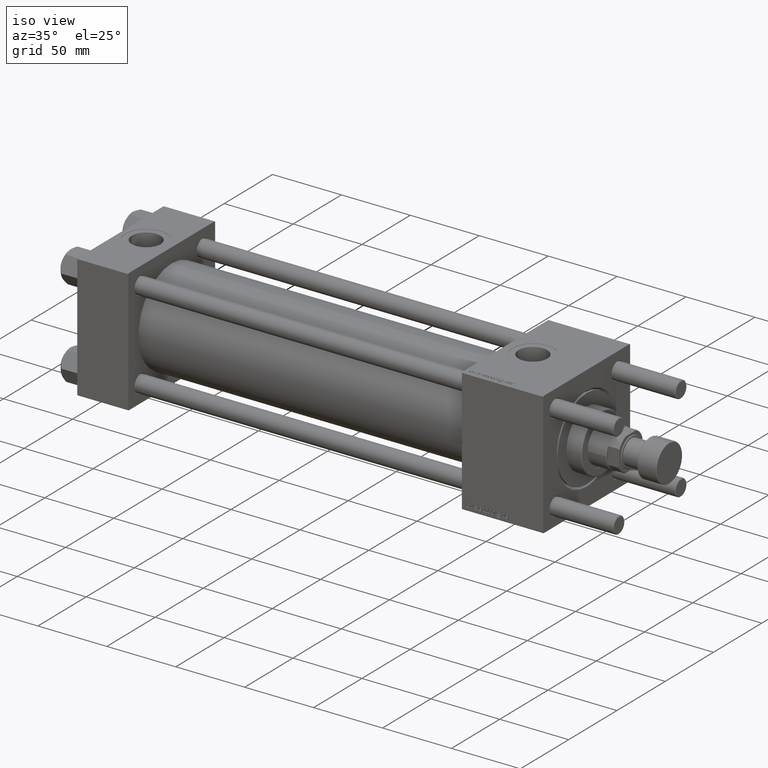
[diagram: clean part render]
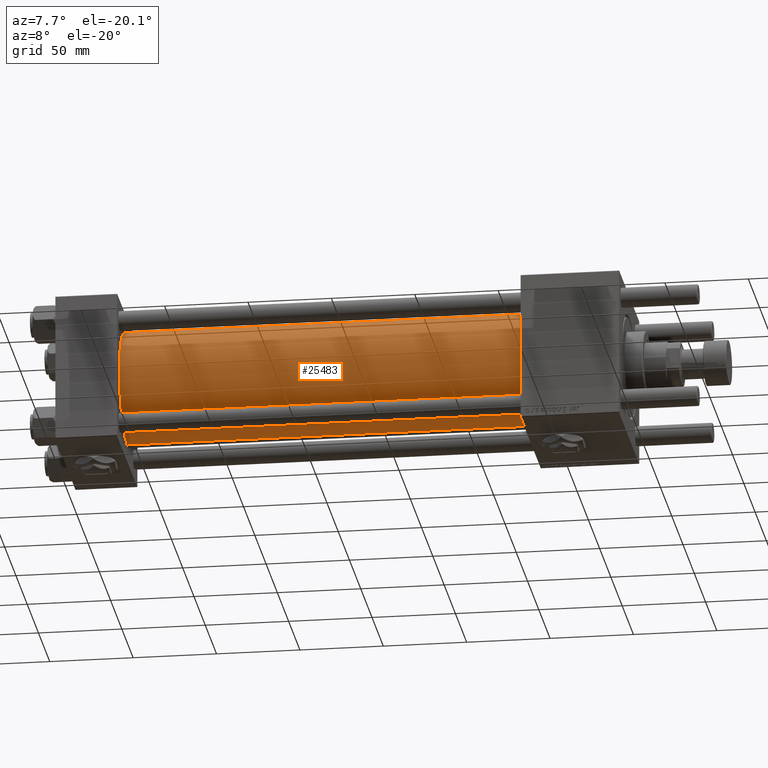
[diagram: tour spotlight — one face highlighted and labeled with its STEP entity id]
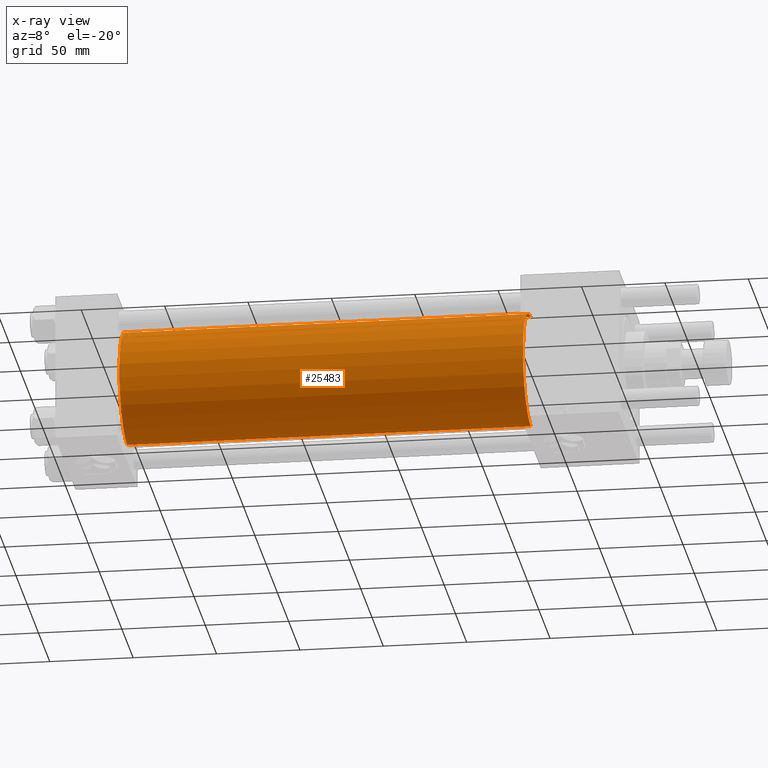
[diagram: x-ray of the same camera — body ghosted, this tour face saturated]
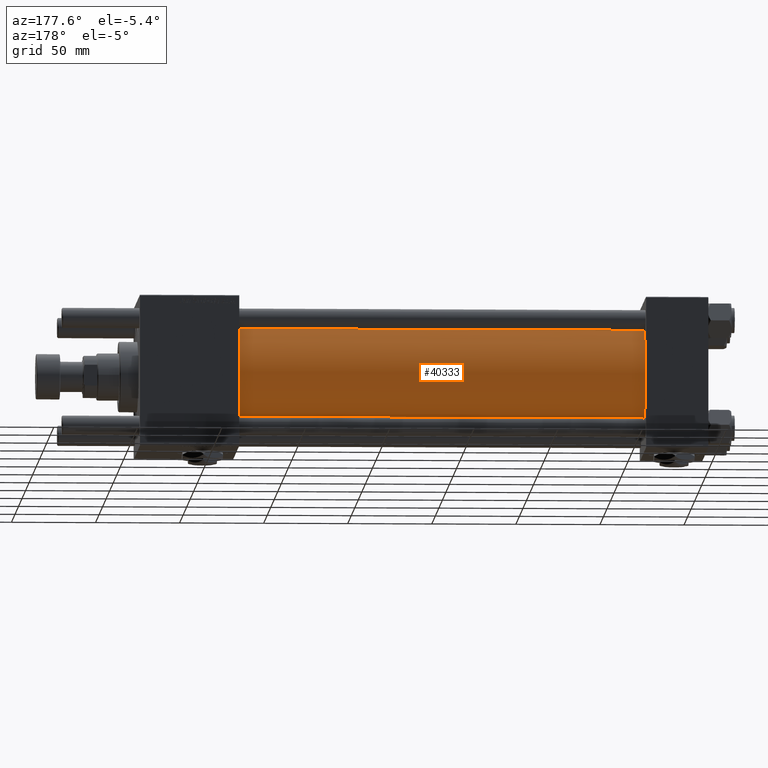
[diagram: tour spotlight — one face highlighted and labeled with its STEP entity id]
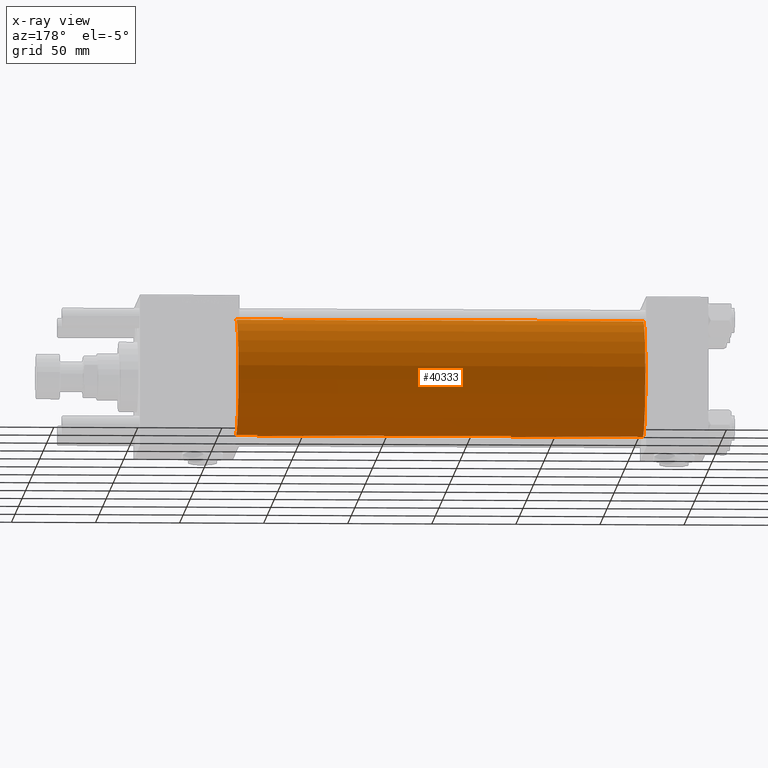
[diagram: x-ray of the same camera — body ghosted, this tour face saturated]
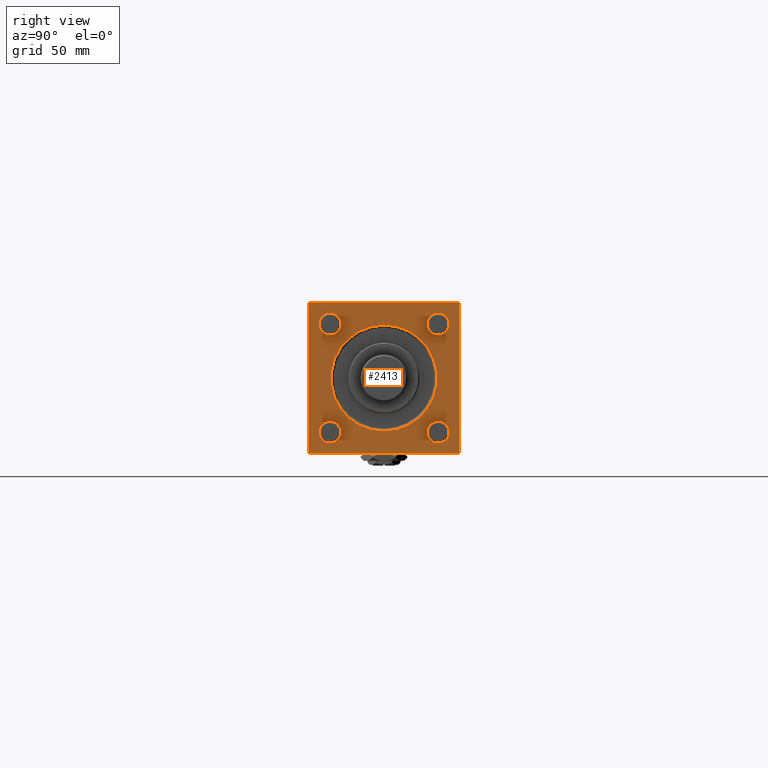
[diagram: tour spotlight — one face highlighted and labeled with its STEP entity id]
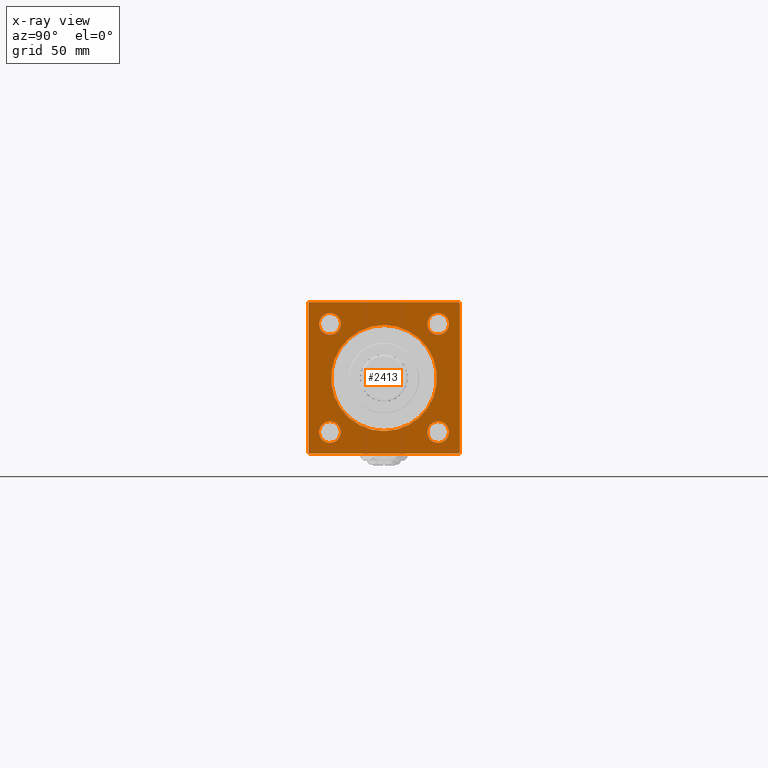
[diagram: x-ray of the same camera — body ghosted, this tour face saturated]
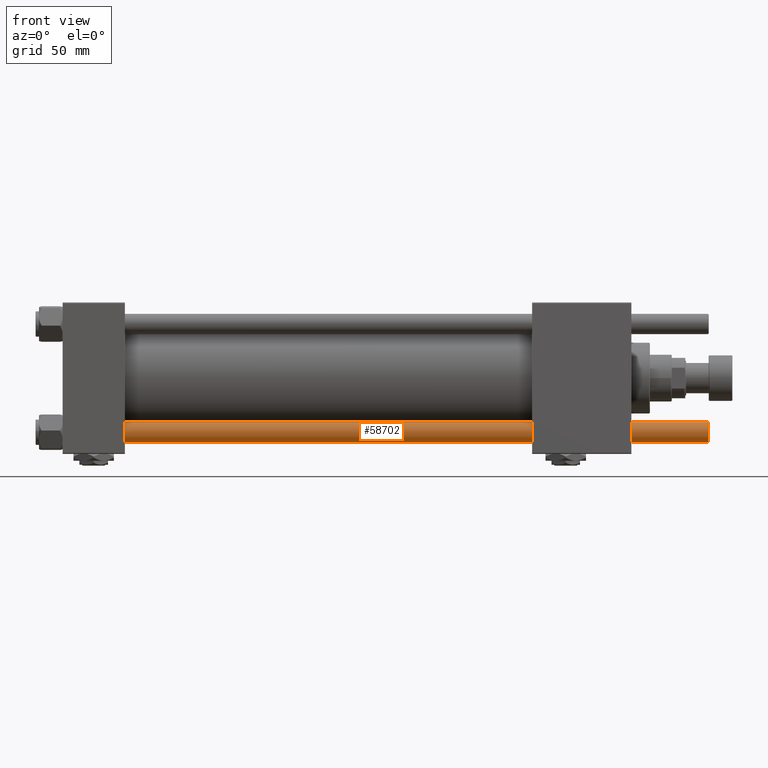
[diagram: tour spotlight — one face highlighted and labeled with its STEP entity id]
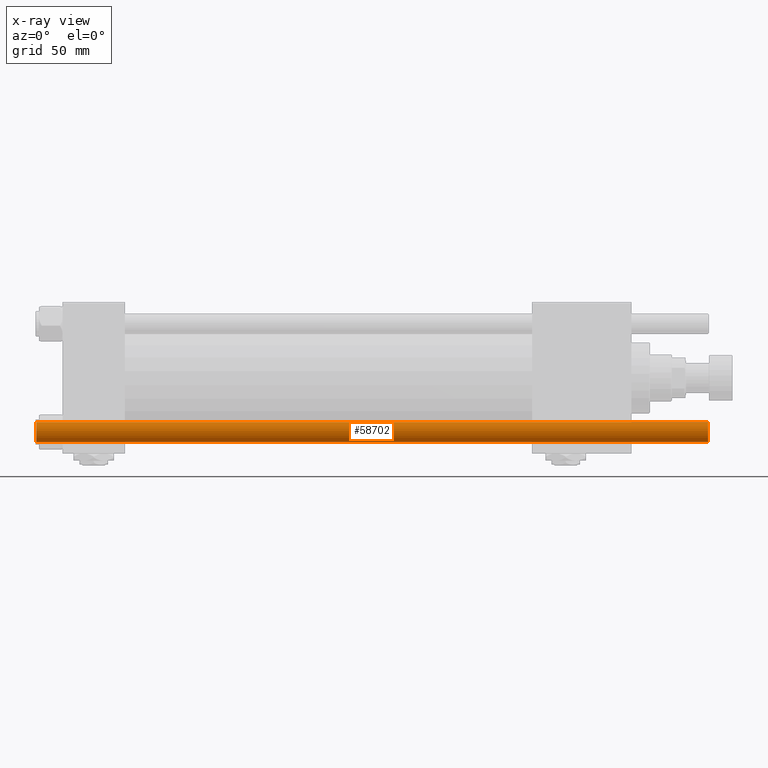
[diagram: x-ray of the same camera — body ghosted, this tour face saturated]
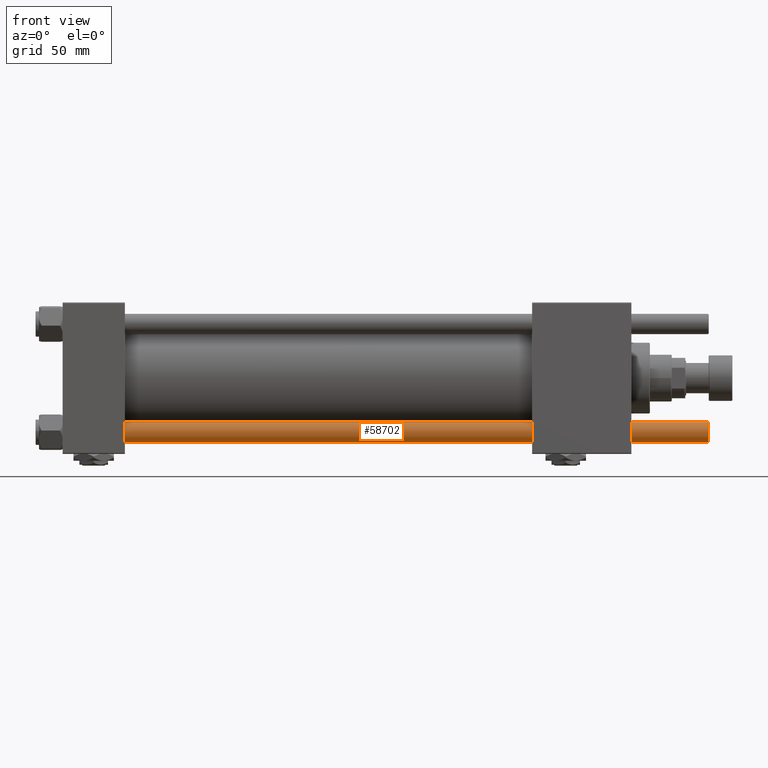
[diagram: tour spotlight — one face highlighted and labeled with its STEP entity id]
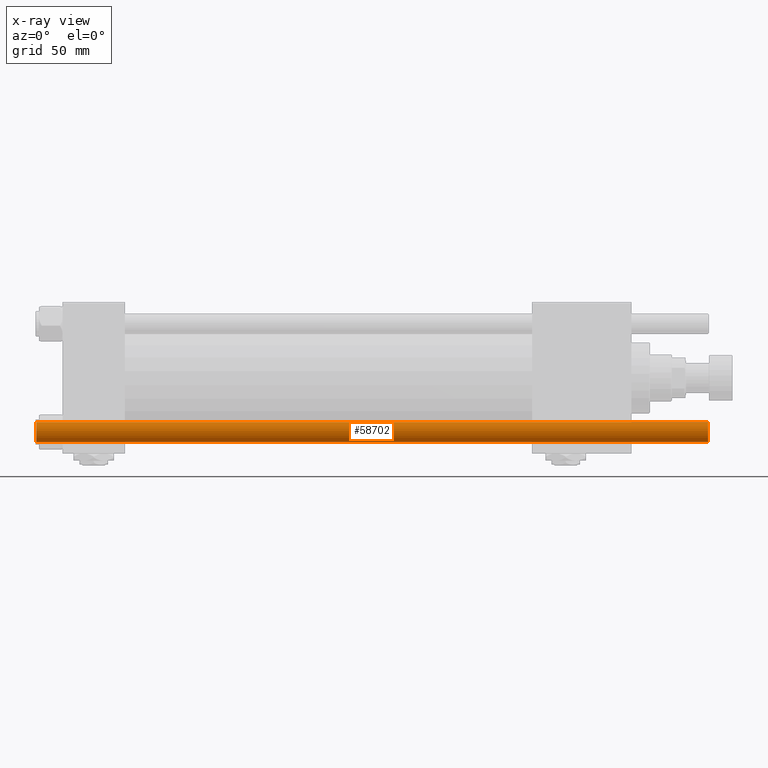
[diagram: x-ray of the same camera — body ghosted, this tour face saturated]
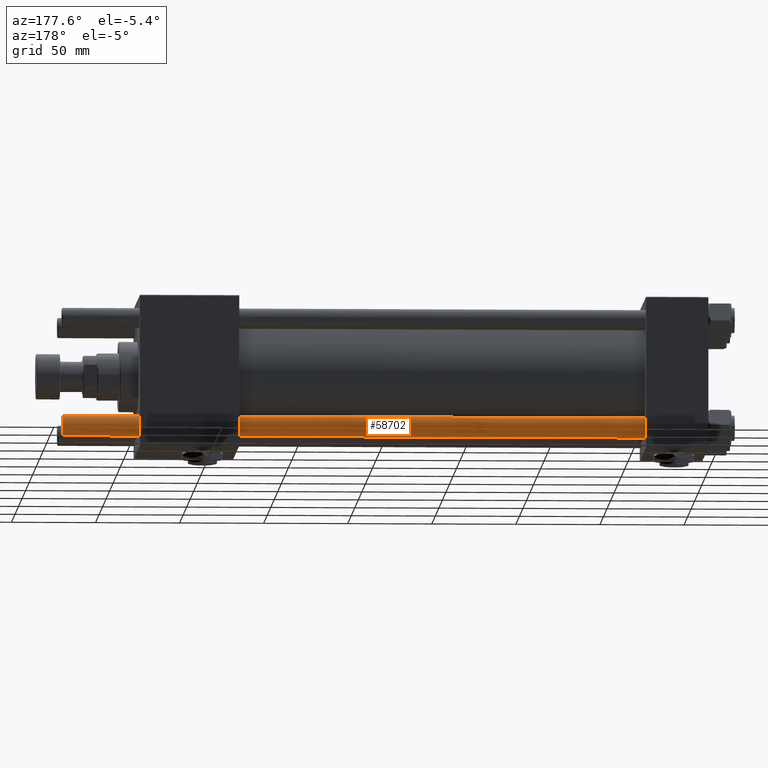
[diagram: tour spotlight — one face highlighted and labeled with its STEP entity id]
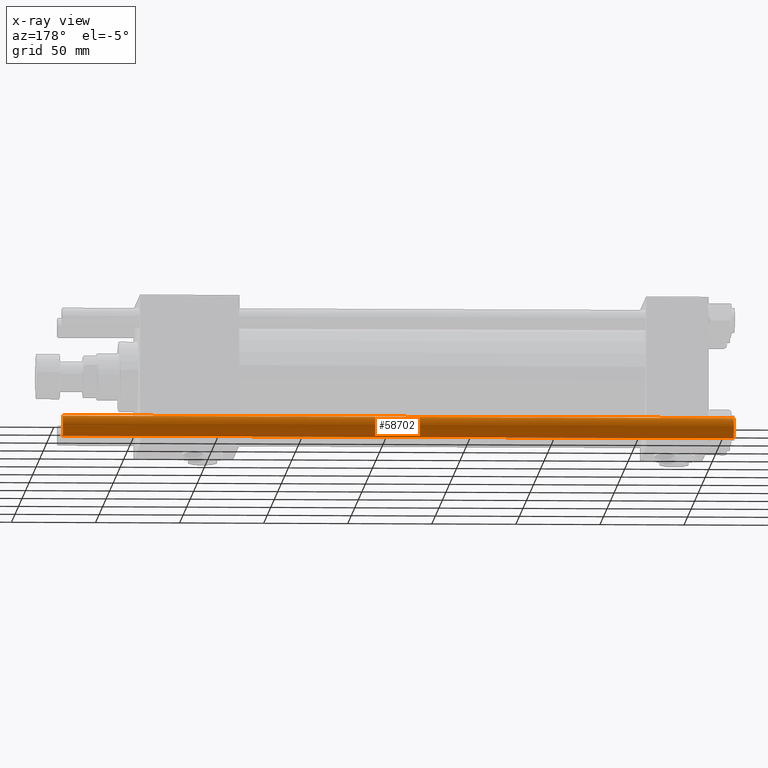
[diagram: x-ray of the same camera — body ghosted, this tour face saturated]
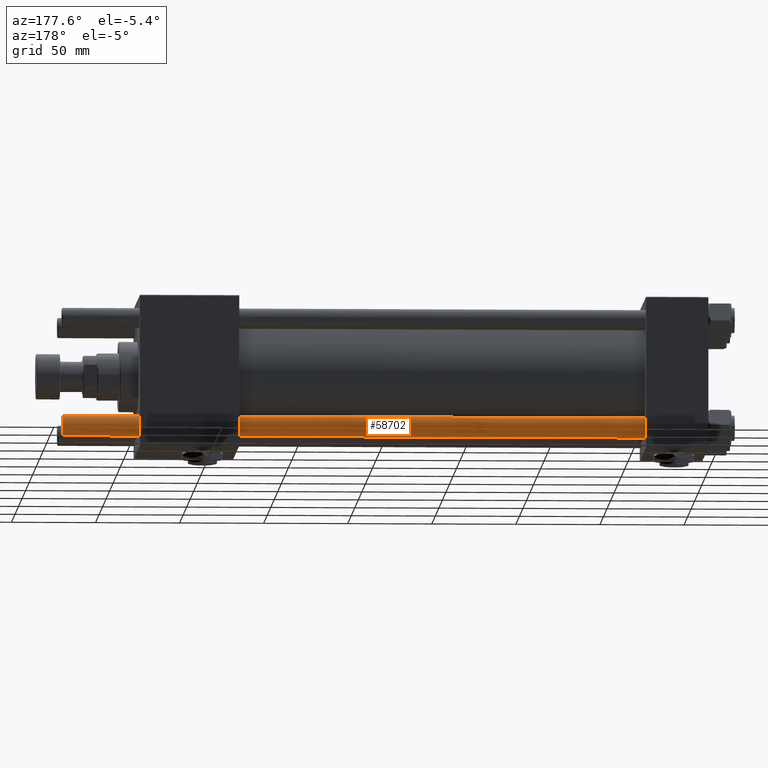
[diagram: tour spotlight — one face highlighted and labeled with its STEP entity id]
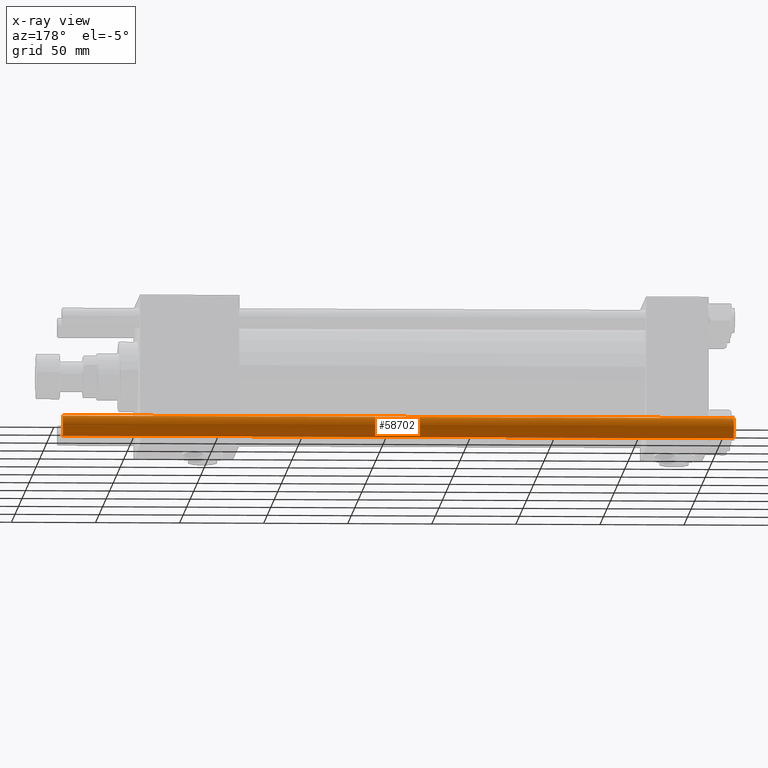
[diagram: x-ray of the same camera — body ghosted, this tour face saturated]
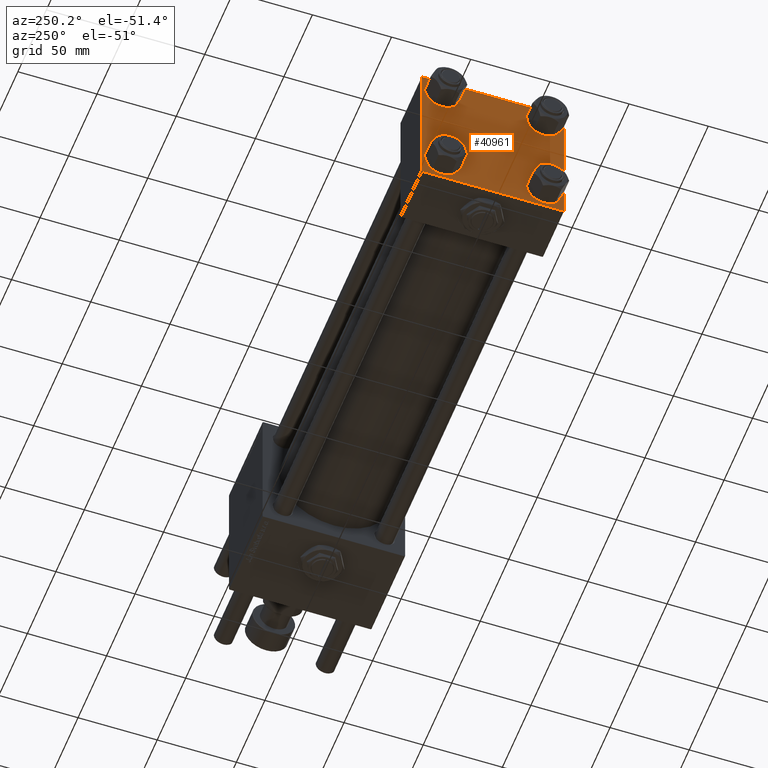
[diagram: tour spotlight — one face highlighted and labeled with its STEP entity id]
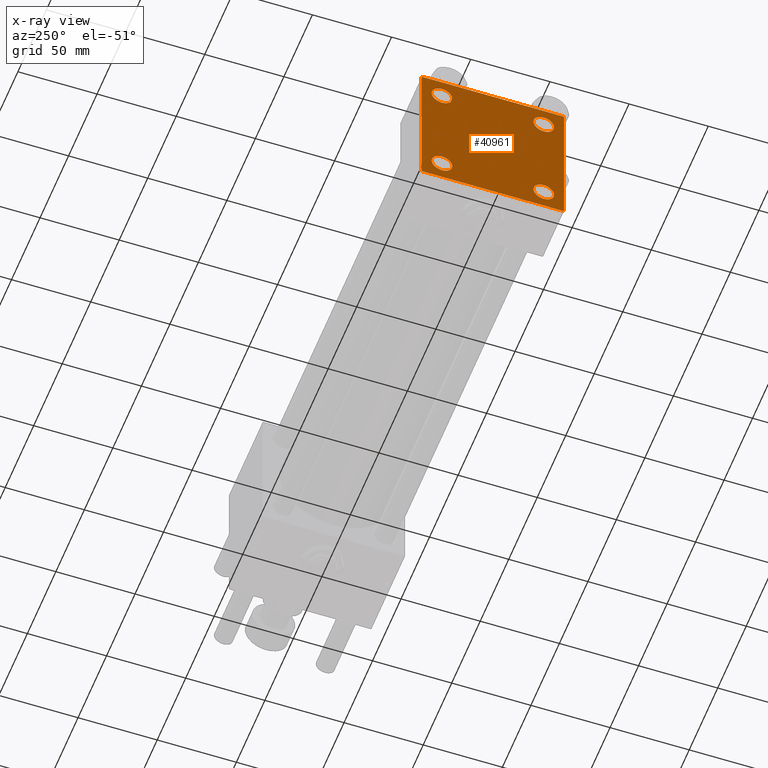
[diagram: x-ray of the same camera — body ghosted, this tour face saturated]
A machine part: a face-by-face anatomy tour. The part has 1271 B-rep faces; the first image is the clean iso view, then the 8 largest visible faces are spotlighted one at a time (largest first), each with its STEP entity span.

Face 1 — auxiliary view, entity #25483. An x-ray twin of the same camera follows (body ghosted, this face saturated) — the face is partly hidden behind the body. In plain terms, the highlighted cylindrical surface (partial cylindrical patch) has radius 34.5 mm, axis along (-1, -0, -0).
Definition (entity closure, byte-faithful):
#403 = AXIS2_PLACEMENT_3D ( 'NONE', #58868, #423, #54067 ) ;
#423 = DIRECTION ( 'NONE',  ( 1.000000000000000000, 0.000000000000000000, 0.000000000000000000 ) ) ;
#3484 = EDGE_CURVE ( 'NONE', #48562, #52103, #35583, .T. ) ;
#4712 = DIRECTION ( 'NONE',  ( -1.000000000000000000, -0.000000000000000000, -0.000000000000000000 ) ) ;
#4999 = DIRECTION ( 'NONE',  ( 1.000000000000000000, -0.000000000000000000, 0.000000000000000000 ) ) ;
#6375 = CARTESIAN_POINT ( 'NONE',  ( 278.9999999999999432, 1.622946243093158675E-15, -34.50000000000000000 ) ) ;
#6524 = CARTESIAN_POINT ( 'NONE',  ( 37.00000000000000711, 1.622946243093158675E-15, -34.50000000000000000 ) ) ;
#7994 = CARTESIAN_POINT ( 'NONE',  ( 37.00000000000000711, -2.602085213965210642E-15, 34.50000000000000000 ) ) ;
#8861 = ORIENTED_EDGE ( 'NONE', *, *, #51564, .F. ) ;
#11026 = AXIS2_PLACEMENT_3D ( 'NONE', #51600, #24304, #42593 ) ;
#11244 = DIRECTION ( 'NONE',  ( -1.000000000000000000, -0.000000000000000000, -0.000000000000000000 ) ) ;
#12458 = ORIENTED_EDGE ( 'NONE', *, *, #53970, .T. ) ;
#13209 = VECTOR ( 'NONE', #11244, 1000.000000000000000 ) ;
#14349 = ORIENTED_EDGE ( 'NONE', *, *, #3484, .T. ) ;
#15718 = CARTESIAN_POINT ( 'NONE',  ( 278.9999999999999432, 1.622946243093158675E-15, -34.50000000000000000 ) ) ;
#17875 = CARTESIAN_POINT ( 'NONE',  ( 278.9999999999999432, -2.602085213965210642E-15, 34.50000000000000000 ) ) ;
#22936 = VERTEX_POINT ( 'NONE', #6375 ) ;
#23860 = EDGE_CURVE ( 'NONE', #48562, #22936, #29134, .T. ) ;
#24037 = VECTOR ( 'NONE', #4712, 1000.000000000000000 ) ;
#24304 = DIRECTION ( 'NONE',  ( -1.000000000000000000, -0.000000000000000000, -0.000000000000000000 ) ) ;
#25322 = CARTESIAN_POINT ( 'NONE',  ( 278.9999999999999432, -2.602085213965210642E-15, 34.50000000000000000 ) ) ;
#25483 = ADVANCED_FACE ( 'NONE', ( #57001 ), #46477, .T. ) ;
#29134 = CIRCLE ( 'NONE', #403, 34.50000000000000000 ) ;
#29576 = ORIENTED_EDGE ( 'NONE', *, *, #23860, .F. ) ;
#35583 = LINE ( 'NONE', #17875, #24037 ) ;
#36754 = CARTESIAN_POINT ( 'NONE',  ( 37.00000000000000711, -2.602085213965210642E-15, 0.000000000000000000 ) ) ;
#42593 = DIRECTION ( 'NONE',  ( 0.000000000000000000, 0.000000000000000000, 1.000000000000000000 ) ) ;
#46477 = CYLINDRICAL_SURFACE ( 'NONE', #11026, 34.50000000000000000 ) ;
#48562 = VERTEX_POINT ( 'NONE', #25322 ) ;
#49664 = CIRCLE ( 'NONE', #53481, 34.50000000000000000 ) ;
#51214 = VERTEX_POINT ( 'NONE', #6524 ) ;
#51564 = EDGE_CURVE ( 'NONE', #22936, #51214, #53463, .T. ) ;
#51600 = CARTESIAN_POINT ( 'NONE',  ( 278.9999999999999432, -2.602085213965210642E-15, 0.000000000000000000 ) ) ;
#52103 = VERTEX_POINT ( 'NONE', #7994 ) ;
#53463 = LINE ( 'NONE', #15718, #13209 ) ;
#53481 = AXIS2_PLACEMENT_3D ( 'NONE', #36754, #4999, #54162 ) ;
#53970 = EDGE_CURVE ( 'NONE', #52103, #51214, #49664, .T. ) ;
#54067 = DIRECTION ( 'NONE',  ( 0.000000000000000000, 0.000000000000000000, -1.000000000000000000 ) ) ;
#54162 = DIRECTION ( 'NONE',  ( 0.000000000000000000, 0.000000000000000000, 1.000000000000000000 ) ) ;
#56918 = EDGE_LOOP ( 'NONE', ( #8861, #29576, #14349, #12458 ) ) ;
#57001 = FACE_OUTER_BOUND ( 'NONE', #56918, .T. ) ;
#58868 = CARTESIAN_POINT ( 'NONE',  ( 278.9999999999999432, -2.602085213965210642E-15, 0.000000000000000000 ) ) ;

Face 2 — auxiliary view, entity #40333. An x-ray twin of the same camera follows (body ghosted, this face saturated) — the face is partly hidden behind the body. In plain terms, the highlighted cylindrical surface (partial cylindrical patch) has radius 34.5 mm, axis along (-1, -0, -0).
Definition (entity closure, byte-faithful):
#3484 = EDGE_CURVE ( 'NONE', #48562, #52103, #35583, .T. ) ;
#4712 = DIRECTION ( 'NONE',  ( -1.000000000000000000, -0.000000000000000000, -0.000000000000000000 ) ) ;
#6375 = CARTESIAN_POINT ( 'NONE',  ( 278.9999999999999432, 1.622946243093158675E-15, -34.50000000000000000 ) ) ;
#6524 = CARTESIAN_POINT ( 'NONE',  ( 37.00000000000000711, 1.622946243093158675E-15, -34.50000000000000000 ) ) ;
#7089 = FACE_OUTER_BOUND ( 'NONE', #13055, .T. ) ;
#7994 = CARTESIAN_POINT ( 'NONE',  ( 37.00000000000000711, -2.602085213965210642E-15, 34.50000000000000000 ) ) ;
#8608 = ORIENTED_EDGE ( 'NONE', *, *, #51564, .T. ) ;
#9100 = EDGE_CURVE ( 'NONE', #22936, #48562, #53893, .T. ) ;
#10535 = CARTESIAN_POINT ( 'NONE',  ( 278.9999999999999432, -2.602085213965210642E-15, 0.000000000000000000 ) ) ;
#11244 = DIRECTION ( 'NONE',  ( -1.000000000000000000, -0.000000000000000000, -0.000000000000000000 ) ) ;
#13055 = EDGE_LOOP ( 'NONE', ( #39593, #8608, #31955, #59205 ) ) ;
#13209 = VECTOR ( 'NONE', #11244, 1000.000000000000000 ) ;
#15461 = DIRECTION ( 'NONE',  ( -1.000000000000000000, -0.000000000000000000, -0.000000000000000000 ) ) ;
#15718 = CARTESIAN_POINT ( 'NONE',  ( 278.9999999999999432, 1.622946243093158675E-15, -34.50000000000000000 ) ) ;
#16581 = AXIS2_PLACEMENT_3D ( 'NONE', #10535, #23382, #18886 ) ;
#17482 = DIRECTION ( 'NONE',  ( 1.000000000000000000, -0.000000000000000000, 0.000000000000000000 ) ) ;
#17875 = CARTESIAN_POINT ( 'NONE',  ( 278.9999999999999432, -2.602085213965210642E-15, 34.50000000000000000 ) ) ;
#18886 = DIRECTION ( 'NONE',  ( 0.000000000000000000, 0.000000000000000000, -1.000000000000000000 ) ) ;
#22936 = VERTEX_POINT ( 'NONE', #6375 ) ;
#23382 = DIRECTION ( 'NONE',  ( 1.000000000000000000, 0.000000000000000000, 0.000000000000000000 ) ) ;
#23840 = EDGE_CURVE ( 'NONE', #51214, #52103, #54965, .T. ) ;
#24037 = VECTOR ( 'NONE', #4712, 1000.000000000000000 ) ;
#24438 = CYLINDRICAL_SURFACE ( 'NONE', #49606, 34.50000000000000000 ) ;
#25322 = CARTESIAN_POINT ( 'NONE',  ( 278.9999999999999432, -2.602085213965210642E-15, 34.50000000000000000 ) ) ;
#29538 = DIRECTION ( 'NONE',  ( 0.000000000000000000, 0.000000000000000000, 1.000000000000000000 ) ) ;
#30132 = CARTESIAN_POINT ( 'NONE',  ( 278.9999999999999432, -2.602085213965210642E-15, 0.000000000000000000 ) ) ;
#31955 = ORIENTED_EDGE ( 'NONE', *, *, #23840, .T. ) ;
#35583 = LINE ( 'NONE', #17875, #24037 ) ;
#39593 = ORIENTED_EDGE ( 'NONE', *, *, #9100, .F. ) ;
#40333 = ADVANCED_FACE ( 'NONE', ( #7089 ), #24438, .T. ) ;
#41145 = DIRECTION ( 'NONE',  ( 0.000000000000000000, 0.000000000000000000, 1.000000000000000000 ) ) ;
#48562 = VERTEX_POINT ( 'NONE', #25322 ) ;
#49606 = AXIS2_PLACEMENT_3D ( 'NONE', #30132, #15461, #29538 ) ;
#50157 = CARTESIAN_POINT ( 'NONE',  ( 37.00000000000000711, -2.602085213965210642E-15, 0.000000000000000000 ) ) ;
#51113 = AXIS2_PLACEMENT_3D ( 'NONE', #50157, #17482, #41145 ) ;
#51214 = VERTEX_POINT ( 'NONE', #6524 ) ;
#51564 = EDGE_CURVE ( 'NONE', #22936, #51214, #53463, .T. ) ;
#52103 = VERTEX_POINT ( 'NONE', #7994 ) ;
#53463 = LINE ( 'NONE', #15718, #13209 ) ;
#53893 = CIRCLE ( 'NONE', #16581, 34.50000000000000000 ) ;
#54965 = CIRCLE ( 'NONE', #51113, 34.50000000000000000 ) ;
#59205 = ORIENTED_EDGE ( 'NONE', *, *, #3484, .F. ) ;

Face 3 — right view, entity #2413. An x-ray twin of the same camera follows (body ghosted, this face saturated) — the face is partly hidden behind the body. In plain terms, the highlighted planar face has unit normal (-1, 0, 0).
Definition (entity closure, byte-faithful):
#1278 = FACE_BOUND ( 'NONE', #51447, .T. ) ;
#1734 = CIRCLE ( 'NONE', #7471, 6.500000000000005329 ) ;
#1839 = DIRECTION ( 'NONE',  ( -0.000000000000000000, -0.7071067811865081598, -0.7071067811865868746 ) ) ;
#1959 = EDGE_CURVE ( 'NONE', #50917, #53584, #8731, .T. ) ;
#1973 = VECTOR ( 'NONE', #21891, 1000.000000000000000 ) ;
#2124 = DIRECTION ( 'NONE',  ( -1.000000000000000000, -0.000000000000000000, -0.000000000000000000 ) ) ;
#2413 = ADVANCED_FACE ( 'NONE', ( #56711, #19519, #1278, #2471, #52512, #47104 ), #37806, .F. ) ;
#2471 = FACE_BOUND ( 'NONE', #4355, .T. ) ;
#2521 = CARTESIAN_POINT ( 'NONE',  ( 337.9999999999999432, -44.99999999999999289, -44.49999999999997158 ) ) ;
#2866 = CARTESIAN_POINT ( 'NONE',  ( 337.9999999999999432, 45.00000000000001421, 45.00000000000000000 ) ) ;
#3177 = CARTESIAN_POINT ( 'NONE',  ( 337.9999999999999432, 45.00000000000001421, -44.49999999999997158 ) ) ;
#3557 = CARTESIAN_POINT ( 'NONE',  ( 337.9999999999999432, -32.14999999999997726, -32.15000000000001279 ) ) ;
#3713 = CIRCLE ( 'NONE', #26659, 6.500000000000005329 ) ;
#3767 = CARTESIAN_POINT ( 'NONE',  ( 337.9999999999999432, -32.14999999999997726, 25.65000000000000568 ) ) ;
#3926 = AXIS2_PLACEMENT_3D ( 'NONE', #56411, #15343, #25224 ) ;
#4033 = DIRECTION ( 'NONE',  ( 0.000000000000000000, 0.000000000000000000, -1.000000000000000000 ) ) ;
#4355 = EDGE_LOOP ( 'NONE', ( #33767, #19645 ) ) ;
#4671 = DIRECTION ( 'NONE',  ( -1.000000000000000000, -0.000000000000000000, -0.000000000000000000 ) ) ;
#5104 = ORIENTED_EDGE ( 'NONE', *, *, #29786, .T. ) ;
#5627 = EDGE_CURVE ( 'NONE', #25425, #52429, #12606, .T. ) ;
#6096 = EDGE_CURVE ( 'NONE', #23243, #18637, #9403, .T. ) ;
#6953 = DIRECTION ( 'NONE',  ( -1.000000000000000000, -0.000000000000000000, -0.000000000000000000 ) ) ;
#7471 = AXIS2_PLACEMENT_3D ( 'NONE', #37586, #19296, #56793 ) ;
#8123 = DIRECTION ( 'NONE',  ( -1.000000000000000000, -0.000000000000000000, -0.000000000000000000 ) ) ;
#8187 = AXIS2_PLACEMENT_3D ( 'NONE', #49162, #8123, #26366 ) ;
#8265 = ORIENTED_EDGE ( 'NONE', *, *, #41005, .T. ) ;
#8731 = LINE ( 'NONE', #44669, #1973 ) ;
#9403 = LINE ( 'NONE', #10285, #18358 ) ;
#9542 = CIRCLE ( 'NONE', #55476, 6.500000000000005329 ) ;
#10285 = CARTESIAN_POINT ( 'NONE',  ( 337.9999999999999432, 45.00000000000001421, 45.00000000000000000 ) ) ;
#10292 = DIRECTION ( 'NONE',  ( 0.000000000000000000, 7.709882115452478166E-17, -1.000000000000000000 ) ) ;
#10625 = ORIENTED_EDGE ( 'NONE', *, *, #30194, .T. ) ;
#11621 = EDGE_CURVE ( 'NONE', #22733, #40766, #51342, .T. ) ;
#12092 = CARTESIAN_POINT ( 'NONE',  ( 337.9999999999999432, 0.000000000000000000, 0.000000000000000000 ) ) ;
#12409 = ORIENTED_EDGE ( 'NONE', *, *, #40101, .T. ) ;
#12606 = CIRCLE ( 'NONE', #46072, 6.500000000000005329 ) ;
#12633 = CARTESIAN_POINT ( 'NONE',  ( 337.9999999999999432, 32.14999999999999147, -32.15000000000000568 ) ) ;
#13044 = CARTESIAN_POINT ( 'NONE',  ( 337.9999999999999432, -32.14999999999997726, -38.65000000000001990 ) ) ;
#13863 = EDGE_CURVE ( 'NONE', #53650, #33226, #39692, .T. ) ;
#14128 = CARTESIAN_POINT ( 'NONE',  ( 337.9999999999999432, 32.14999999999999147, -25.64999999999999858 ) ) ;
#14284 = CARTESIAN_POINT ( 'NONE',  ( 337.9999999999999432, -45.00000000000000000, 44.49999999999998579 ) ) ;
#14994 = EDGE_CURVE ( 'NONE', #24717, #41172, #23215, .T. ) ;
#15343 = DIRECTION ( 'NONE',  ( -1.000000000000000000, 0.000000000000000000, -0.000000000000000000 ) ) ;
#15796 = CARTESIAN_POINT ( 'NONE',  ( 337.9999999999999432, 32.14999999999999147, -38.65000000000001279 ) ) ;
#15943 = VERTEX_POINT ( 'NONE', #13044 ) ;
#16244 = CIRCLE ( 'NONE', #32468, 6.500000000000005329 ) ;
#17720 = LINE ( 'NONE', #36008, #54378 ) ;
#18358 = VECTOR ( 'NONE', #28538, 1000.000000000000000 ) ;
#18637 = VERTEX_POINT ( 'NONE', #20604 ) ;
#19180 = LINE ( 'NONE', #47370, #42935 ) ;
#19190 = VERTEX_POINT ( 'NONE', #34199 ) ;
#19296 = DIRECTION ( 'NONE',  ( -1.000000000000000000, -0.000000000000000000, -0.000000000000000000 ) ) ;
#19519 = FACE_BOUND ( 'NONE', #24753, .T. ) ;
#19645 = ORIENTED_EDGE ( 'NONE', *, *, #51515, .T. ) ;
#20111 = DIRECTION ( 'NONE',  ( 0.000000000000000000, 0.000000000000000000, 1.000000000000000000 ) ) ;
#20604 = CARTESIAN_POINT ( 'NONE',  ( 337.9999999999999432, -44.50000000000002842, 44.99999999999998579 ) ) ;
#20615 = VERTEX_POINT ( 'NONE', #3767 ) ;
#21498 = CARTESIAN_POINT ( 'NONE',  ( 337.9999999999999432, -32.14999999999997726, 32.15000000000001279 ) ) ;
#21810 = DIRECTION ( 'NONE',  ( -1.000000000000000000, -0.000000000000000000, -0.000000000000000000 ) ) ;
#21891 = DIRECTION ( 'NONE',  ( 0.000000000000000000, -1.000000000000000000, 0.000000000000000000 ) ) ;
#22193 = DIRECTION ( 'NONE',  ( -1.000000000000000000, -0.000000000000000000, -0.000000000000000000 ) ) ;
#22332 = EDGE_CURVE ( 'NONE', #37726, #39425, #43559, .T. ) ;
#22354 = ORIENTED_EDGE ( 'NONE', *, *, #1959, .F. ) ;
#22510 = CARTESIAN_POINT ( 'NONE',  ( 337.9999999999999432, 3.857637417314158745E-15, 31.49999999999997158 ) ) ;
#22733 = VERTEX_POINT ( 'NONE', #14284 ) ;
#23215 = CIRCLE ( 'NONE', #40413, 31.49999999999997158 ) ;
#23243 = VERTEX_POINT ( 'NONE', #53903 ) ;
#24267 = CARTESIAN_POINT ( 'NONE',  ( 337.9999999999999432, 0.000000000000000000, 0.000000000000000000 ) ) ;
#24717 = VERTEX_POINT ( 'NONE', #22510 ) ;
#24753 = EDGE_LOOP ( 'NONE', ( #46665, #31997 ) ) ;
#24813 = ORIENTED_EDGE ( 'NONE', *, *, #39085, .T. ) ;
#25224 = DIRECTION ( 'NONE',  ( -0.000000000000000000, 0.000000000000000000, 1.000000000000000000 ) ) ;
#25425 = VERTEX_POINT ( 'NONE', #36899 ) ;
#26366 = DIRECTION ( 'NONE',  ( 0.000000000000000000, 0.000000000000000000, 1.000000000000000000 ) ) ;
#26427 = DIRECTION ( 'NONE',  ( 0.000000000000000000, 0.000000000000000000, 1.000000000000000000 ) ) ;
#26659 = AXIS2_PLACEMENT_3D ( 'NONE', #29402, #6953, #20111 ) ;
#27556 = CIRCLE ( 'NONE', #35227, 6.500000000000005329 ) ;
#27739 = ORIENTED_EDGE ( 'NONE', *, *, #47148, .T. ) ;
#27931 = EDGE_CURVE ( 'NONE', #20615, #19190, #31116, .T. ) ;
#28509 = CIRCLE ( 'NONE', #34313, 31.49999999999997158 ) ;
#28538 = DIRECTION ( 'NONE',  ( 0.000000000000000000, -1.000000000000000000, -1.541976423090495140E-16 ) ) ;
#29256 = AXIS2_PLACEMENT_3D ( 'NONE', #21498, #34717, #57214 ) ;
#29402 = CARTESIAN_POINT ( 'NONE',  ( 337.9999999999999432, 32.14999999999999147, 32.15000000000000568 ) ) ;
#29786 = EDGE_CURVE ( 'NONE', #50917, #33226, #53645, .T. ) ;
#29986 = DIRECTION ( 'NONE',  ( -0.000000000000000000, 0.7071067811865474617, 0.7071067811865474617 ) ) ;
#30194 = EDGE_CURVE ( 'NONE', #40766, #53584, #51434, .T. ) ;
#30355 = DIRECTION ( 'NONE',  ( -1.000000000000000000, -0.000000000000000000, -0.000000000000000000 ) ) ;
#31116 = CIRCLE ( 'NONE', #29256, 6.500000000000005329 ) ;
#31992 = EDGE_LOOP ( 'NONE', ( #24813, #47117 ) ) ;
#31997 = ORIENTED_EDGE ( 'NONE', *, *, #22332, .T. ) ;
#32053 = CARTESIAN_POINT ( 'NONE',  ( 337.9999999999999432, 44.50000000000001421, -45.00000000000000000 ) ) ;
#32211 = CARTESIAN_POINT ( 'NONE',  ( 337.9999999999999432, -32.14999999999997726, -32.15000000000001279 ) ) ;
#32468 = AXIS2_PLACEMENT_3D ( 'NONE', #12633, #22193, #40479 ) ;
#33226 = VERTEX_POINT ( 'NONE', #3177 ) ;
#33767 = ORIENTED_EDGE ( 'NONE', *, *, #27931, .T. ) ;
#34092 = VECTOR ( 'NONE', #29986, 1000.000000000000114 ) ;
#34199 = CARTESIAN_POINT ( 'NONE',  ( 337.9999999999999432, -32.14999999999997726, 38.65000000000001990 ) ) ;
#34313 = AXIS2_PLACEMENT_3D ( 'NONE', #24267, #43462, #38365 ) ;
#34717 = DIRECTION ( 'NONE',  ( -1.000000000000000000, -0.000000000000000000, -0.000000000000000000 ) ) ;
#35227 = AXIS2_PLACEMENT_3D ( 'NONE', #3557, #21810, #49394 ) ;
#35830 = EDGE_CURVE ( 'NONE', #41172, #24717, #28509, .T. ) ;
#36008 = CARTESIAN_POINT ( 'NONE',  ( 337.9999999999999432, 44.49999999999995737, 45.00000000000000000 ) ) ;
#36225 = CARTESIAN_POINT ( 'NONE',  ( 337.9999999999999432, 45.00000000000001421, 44.49999999999994316 ) ) ;
#36429 = VECTOR ( 'NONE', #10292, 1000.000000000000000 ) ;
#36536 = CARTESIAN_POINT ( 'NONE',  ( 337.9999999999999432, 0.000000000000000000, -31.49999999999997158 ) ) ;
#36899 = CARTESIAN_POINT ( 'NONE',  ( 337.9999999999999432, 32.14999999999999147, 25.64999999999999858 ) ) ;
#37586 = CARTESIAN_POINT ( 'NONE',  ( 337.9999999999999432, -32.14999999999997726, 32.15000000000001279 ) ) ;
#37726 = VERTEX_POINT ( 'NONE', #14128 ) ;
#37806 = PLANE ( 'NONE',  #3926 ) ;
#38365 = DIRECTION ( 'NONE',  ( 0.000000000000000000, 0.000000000000000000, 1.000000000000000000 ) ) ;
#39085 = EDGE_CURVE ( 'NONE', #15943, #47645, #27556, .T. ) ;
#39425 = VERTEX_POINT ( 'NONE', #15796 ) ;
#39692 = LINE ( 'NONE', #2866, #47138 ) ;
#39725 = ORIENTED_EDGE ( 'NONE', *, *, #6096, .T. ) ;
#40101 = EDGE_CURVE ( 'NONE', #18637, #22733, #19180, .T. ) ;
#40251 = ORIENTED_EDGE ( 'NONE', *, *, #14994, .T. ) ;
#40323 = DIRECTION ( 'NONE',  ( 0.000000000000000000, 0.000000000000000000, 1.000000000000000000 ) ) ;
#40413 = AXIS2_PLACEMENT_3D ( 'NONE', #12092, #30355, #26427 ) ;
#40479 = DIRECTION ( 'NONE',  ( 0.000000000000000000, 0.000000000000000000, 1.000000000000000000 ) ) ;
#40766 = VERTEX_POINT ( 'NONE', #2521 ) ;
#40882 = ORIENTED_EDGE ( 'NONE', *, *, #11621, .T. ) ;
#41005 = EDGE_CURVE ( 'NONE', #52429, #25425, #3713, .T. ) ;
#41172 = VERTEX_POINT ( 'NONE', #36536 ) ;
#41824 = CARTESIAN_POINT ( 'NONE',  ( 337.9999999999999432, -44.49999999999998579, -45.00000000000000000 ) ) ;
#42857 = EDGE_CURVE ( 'NONE', #39425, #37726, #16244, .T. ) ;
#42935 = VECTOR ( 'NONE', #1839, 1000.000000000000000 ) ;
#43161 = CARTESIAN_POINT ( 'NONE',  ( 337.9999999999999432, 32.14999999999999147, 32.15000000000000568 ) ) ;
#43462 = DIRECTION ( 'NONE',  ( -1.000000000000000000, -0.000000000000000000, -0.000000000000000000 ) ) ;
#43559 = CIRCLE ( 'NONE', #8187, 6.500000000000005329 ) ;
#44669 = CARTESIAN_POINT ( 'NONE',  ( 337.9999999999999432, 45.00000000000001421, -45.00000000000000000 ) ) ;
#46072 = AXIS2_PLACEMENT_3D ( 'NONE', #43161, #2124, #47051 ) ;
#46665 = ORIENTED_EDGE ( 'NONE', *, *, #42857, .T. ) ;
#47051 = DIRECTION ( 'NONE',  ( 0.000000000000000000, 0.000000000000000000, 1.000000000000000000 ) ) ;
#47104 = FACE_OUTER_BOUND ( 'NONE', #48453, .T. ) ;
#47117 = ORIENTED_EDGE ( 'NONE', *, *, #56482, .T. ) ;
#47138 = VECTOR ( 'NONE', #4033, 1000.000000000000000 ) ;
#47148 = EDGE_CURVE ( 'NONE', #53650, #23243, #17720, .T. ) ;
#47370 = CARTESIAN_POINT ( 'NONE',  ( 337.9999999999999432, -45.00000000000000000, 44.49999999999998579 ) ) ;
#47595 = EDGE_LOOP ( 'NONE', ( #48717, #40251 ) ) ;
#47645 = VERTEX_POINT ( 'NONE', #50469 ) ;
#48453 = EDGE_LOOP ( 'NONE', ( #40882, #10625, #22354, #5104, #52729, #27739, #39725, #12409 ) ) ;
#48457 = VECTOR ( 'NONE', #55629, 999.9999999999998863 ) ;
#48497 = ORIENTED_EDGE ( 'NONE', *, *, #5627, .T. ) ;
#48556 = CARTESIAN_POINT ( 'NONE',  ( 337.9999999999999432, 45.00000000000001421, -44.50000000000000000 ) ) ;
#48717 = ORIENTED_EDGE ( 'NONE', *, *, #35830, .T. ) ;
#49162 = CARTESIAN_POINT ( 'NONE',  ( 337.9999999999999432, 32.14999999999999147, -32.15000000000000568 ) ) ;
#49394 = DIRECTION ( 'NONE',  ( 0.000000000000000000, 0.000000000000000000, 1.000000000000000000 ) ) ;
#50469 = CARTESIAN_POINT ( 'NONE',  ( 337.9999999999999432, -32.14999999999997726, -25.65000000000000568 ) ) ;
#50917 = VERTEX_POINT ( 'NONE', #32053 ) ;
#51342 = LINE ( 'NONE', #59168, #36429 ) ;
#51434 = LINE ( 'NONE', #41824, #48457 ) ;
#51447 = EDGE_LOOP ( 'NONE', ( #48497, #8265 ) ) ;
#51515 = EDGE_CURVE ( 'NONE', #19190, #20615, #1734, .T. ) ;
#52429 = VERTEX_POINT ( 'NONE', #57691 ) ;
#52512 = FACE_BOUND ( 'NONE', #47595, .T. ) ;
#52729 = ORIENTED_EDGE ( 'NONE', *, *, #13863, .F. ) ;
#53584 = VERTEX_POINT ( 'NONE', #54229 ) ;
#53645 = LINE ( 'NONE', #48556, #34092 ) ;
#53650 = VERTEX_POINT ( 'NONE', #36225 ) ;
#53903 = CARTESIAN_POINT ( 'NONE',  ( 337.9999999999999432, 44.49999999999995737, 45.00000000000000000 ) ) ;
#54229 = CARTESIAN_POINT ( 'NONE',  ( 337.9999999999999432, -44.49999999999995737, -45.00000000000000000 ) ) ;
#54378 = VECTOR ( 'NONE', #59107, 1000.000000000000114 ) ;
#55476 = AXIS2_PLACEMENT_3D ( 'NONE', #32211, #4671, #40323 ) ;
#55629 = DIRECTION ( 'NONE',  ( 0.000000000000000000, 0.7071067811865525687, -0.7071067811865425767 ) ) ;
#56411 = CARTESIAN_POINT ( 'NONE',  ( 337.9999999999999432, 0.000000000000000000, 0.000000000000000000 ) ) ;
#56482 = EDGE_CURVE ( 'NONE', #47645, #15943, #9542, .T. ) ;
#56711 = FACE_BOUND ( 'NONE', #31992, .T. ) ;
#56793 = DIRECTION ( 'NONE',  ( 0.000000000000000000, 0.000000000000000000, 1.000000000000000000 ) ) ;
#57214 = DIRECTION ( 'NONE',  ( 0.000000000000000000, 0.000000000000000000, 1.000000000000000000 ) ) ;
#57691 = CARTESIAN_POINT ( 'NONE',  ( 337.9999999999999432, 32.14999999999999147, 38.65000000000001990 ) ) ;
#59107 = DIRECTION ( 'NONE',  ( 0.000000000000000000, -0.7071067811865474617, 0.7071067811865474617 ) ) ;
#59168 = CARTESIAN_POINT ( 'NONE',  ( 337.9999999999999432, -45.00000000000000000, 44.99999999999998579 ) ) ;

Face 4 — front view, entity #58702. An x-ray twin of the same camera follows (body ghosted, this face saturated) — the face is partly hidden behind the body. In plain terms, the highlighted cylindrical surface (edge-blend (fillet) strip) has radius 6 mm, axis along (-1, 0, -0).
Definition (entity closure, byte-faithful):
#2703 = CARTESIAN_POINT ( 'NONE',  ( 0.000000000000000000, 0.000000000000000000, 399.5000000000000000 ) ) ;
#3181 = CARTESIAN_POINT ( 'NONE',  ( 6.000000000000000888, 7.347880794884120722E-16, 399.5000000000000000 ) ) ;
#3347 = VECTOR ( 'NONE', #26799, 1000.000000000000000 ) ;
#7000 = DIRECTION ( 'NONE',  ( -0.000000000000000000, -0.000000000000000000, 1.000000000000000000 ) ) ;
#7289 = AXIS2_PLACEMENT_3D ( 'NONE', #39028, #7000, #49200 ) ;
#7782 = DIRECTION ( 'NONE',  ( 1.000000000000000000, 0.000000000000000000, 0.000000000000000000 ) ) ;
#8432 = EDGE_CURVE ( 'NONE', #10572, #45360, #16185, .T. ) ;
#10572 = VERTEX_POINT ( 'NONE', #33450 ) ;
#16185 = LINE ( 'NONE', #53059, #41413 ) ;
#17725 = CIRCLE ( 'NONE', #7289, 6.000000000000000888 ) ;
#19834 = ORIENTED_EDGE ( 'NONE', *, *, #35026, .T. ) ;
#20086 = DIRECTION ( 'NONE',  ( -0.000000000000000000, -0.000000000000000000, -1.000000000000000000 ) ) ;
#21700 = EDGE_CURVE ( 'NONE', #28284, #22761, #48714, .T. ) ;
#22732 = ORIENTED_EDGE ( 'NONE', *, *, #8432, .F. ) ;
#22761 = VERTEX_POINT ( 'NONE', #55652 ) ;
#23033 = AXIS2_PLACEMENT_3D ( 'NONE', #39822, #58127, #54803 ) ;
#26799 = DIRECTION ( 'NONE',  ( -0.000000000000000000, -0.000000000000000000, -1.000000000000000000 ) ) ;
#28284 = VERTEX_POINT ( 'NONE', #3181 ) ;
#28637 = EDGE_CURVE ( 'NONE', #22761, #45360, #17725, .T. ) ;
#29039 = EDGE_LOOP ( 'NONE', ( #19834, #49910, #36194, #22732 ) ) ;
#33450 = CARTESIAN_POINT ( 'NONE',  ( -6.000000000000000888, 0.000000000000000000, 399.5000000000000000 ) ) ;
#35026 = EDGE_CURVE ( 'NONE', #10572, #28284, #37141, .T. ) ;
#35624 = CARTESIAN_POINT ( 'NONE',  ( -6.000000000000000888, 0.000000000000000000, 0.5000000000000004441 ) ) ;
#36194 = ORIENTED_EDGE ( 'NONE', *, *, #28637, .T. ) ;
#37141 = CIRCLE ( 'NONE', #51498, 6.000000000000000888 ) ;
#39028 = CARTESIAN_POINT ( 'NONE',  ( 0.000000000000000000, 0.000000000000000000, 0.5000000000000004441 ) ) ;
#39532 = DIRECTION ( 'NONE',  ( 0.000000000000000000, 0.000000000000000000, -1.000000000000000000 ) ) ;
#39822 = CARTESIAN_POINT ( 'NONE',  ( 0.000000000000000000, 0.000000000000000000, 400.0000000000000000 ) ) ;
#41413 = VECTOR ( 'NONE', #20086, 1000.000000000000000 ) ;
#44497 = CARTESIAN_POINT ( 'NONE',  ( 6.000000000000000888, 7.347880794884120722E-16, 400.0000000000000000 ) ) ;
#45360 = VERTEX_POINT ( 'NONE', #35624 ) ;
#48714 = LINE ( 'NONE', #44497, #3347 ) ;
#49200 = DIRECTION ( 'NONE',  ( 1.000000000000000000, 0.000000000000000000, 0.000000000000000000 ) ) ;
#49910 = ORIENTED_EDGE ( 'NONE', *, *, #21700, .T. ) ;
#51498 = AXIS2_PLACEMENT_3D ( 'NONE', #2703, #39532, #7782 ) ;
#53059 = CARTESIAN_POINT ( 'NONE',  ( -6.000000000000000888, 0.000000000000000000, 400.0000000000000000 ) ) ;
#54803 = DIRECTION ( 'NONE',  ( -1.000000000000000000, 0.000000000000000000, 0.000000000000000000 ) ) ;
#55652 = CARTESIAN_POINT ( 'NONE',  ( 6.000000000000000888, 7.347880794884120722E-16, 0.5000000000000004441 ) ) ;
#58127 = DIRECTION ( 'NONE',  ( -0.000000000000000000, -0.000000000000000000, -1.000000000000000000 ) ) ;
#58415 = FACE_OUTER_BOUND ( 'NONE', #29039, .T. ) ;
#58702 = ADVANCED_FACE ( 'NONE', ( #58415 ), #59315, .T. ) ;
#59315 = CYLINDRICAL_SURFACE ( 'NONE', #23033, 6.000000000000000888 ) ;

Face 5 — front view, entity #58702. An x-ray twin of the same camera follows (body ghosted, this face saturated) — the face is partly hidden behind the body. In plain terms, the highlighted cylindrical surface (edge-blend (fillet) strip) has radius 6 mm, axis along (1, 0, 0).
Definition (entity closure, byte-faithful):
#2703 = CARTESIAN_POINT ( 'NONE',  ( 0.000000000000000000, 0.000000000000000000, 399.5000000000000000 ) ) ;
#3181 = CARTESIAN_POINT ( 'NONE',  ( 6.000000000000000888, 7.347880794884120722E-16, 399.5000000000000000 ) ) ;
#3347 = VECTOR ( 'NONE', #26799, 1000.000000000000000 ) ;
#7000 = DIRECTION ( 'NONE',  ( -0.000000000000000000, -0.000000000000000000, 1.000000000000000000 ) ) ;
#7289 = AXIS2_PLACEMENT_3D ( 'NONE', #39028, #7000, #49200 ) ;
#7782 = DIRECTION ( 'NONE',  ( 1.000000000000000000, 0.000000000000000000, 0.000000000000000000 ) ) ;
#8432 = EDGE_CURVE ( 'NONE', #10572, #45360, #16185, .T. ) ;
#10572 = VERTEX_POINT ( 'NONE', #33450 ) ;
#16185 = LINE ( 'NONE', #53059, #41413 ) ;
#17725 = CIRCLE ( 'NONE', #7289, 6.000000000000000888 ) ;
#19834 = ORIENTED_EDGE ( 'NONE', *, *, #35026, .T. ) ;
#20086 = DIRECTION ( 'NONE',  ( -0.000000000000000000, -0.000000000000000000, -1.000000000000000000 ) ) ;
#21700 = EDGE_CURVE ( 'NONE', #28284, #22761, #48714, .T. ) ;
#22732 = ORIENTED_EDGE ( 'NONE', *, *, #8432, .F. ) ;
#22761 = VERTEX_POINT ( 'NONE', #55652 ) ;
#23033 = AXIS2_PLACEMENT_3D ( 'NONE', #39822, #58127, #54803 ) ;
#26799 = DIRECTION ( 'NONE',  ( -0.000000000000000000, -0.000000000000000000, -1.000000000000000000 ) ) ;
#28284 = VERTEX_POINT ( 'NONE', #3181 ) ;
#28637 = EDGE_CURVE ( 'NONE', #22761, #45360, #17725, .T. ) ;
#29039 = EDGE_LOOP ( 'NONE', ( #19834, #49910, #36194, #22732 ) ) ;
#33450 = CARTESIAN_POINT ( 'NONE',  ( -6.000000000000000888, 0.000000000000000000, 399.5000000000000000 ) ) ;
#35026 = EDGE_CURVE ( 'NONE', #10572, #28284, #37141, .T. ) ;
#35624 = CARTESIAN_POINT ( 'NONE',  ( -6.000000000000000888, 0.000000000000000000, 0.5000000000000004441 ) ) ;
#36194 = ORIENTED_EDGE ( 'NONE', *, *, #28637, .T. ) ;
#37141 = CIRCLE ( 'NONE', #51498, 6.000000000000000888 ) ;
#39028 = CARTESIAN_POINT ( 'NONE',  ( 0.000000000000000000, 0.000000000000000000, 0.5000000000000004441 ) ) ;
#39532 = DIRECTION ( 'NONE',  ( 0.000000000000000000, 0.000000000000000000, -1.000000000000000000 ) ) ;
#39822 = CARTESIAN_POINT ( 'NONE',  ( 0.000000000000000000, 0.000000000000000000, 400.0000000000000000 ) ) ;
#41413 = VECTOR ( 'NONE', #20086, 1000.000000000000000 ) ;
#44497 = CARTESIAN_POINT ( 'NONE',  ( 6.000000000000000888, 7.347880794884120722E-16, 400.0000000000000000 ) ) ;
#45360 = VERTEX_POINT ( 'NONE', #35624 ) ;
#48714 = LINE ( 'NONE', #44497, #3347 ) ;
#49200 = DIRECTION ( 'NONE',  ( 1.000000000000000000, 0.000000000000000000, 0.000000000000000000 ) ) ;
#49910 = ORIENTED_EDGE ( 'NONE', *, *, #21700, .T. ) ;
#51498 = AXIS2_PLACEMENT_3D ( 'NONE', #2703, #39532, #7782 ) ;
#53059 = CARTESIAN_POINT ( 'NONE',  ( -6.000000000000000888, 0.000000000000000000, 400.0000000000000000 ) ) ;
#54803 = DIRECTION ( 'NONE',  ( -1.000000000000000000, 0.000000000000000000, 0.000000000000000000 ) ) ;
#55652 = CARTESIAN_POINT ( 'NONE',  ( 6.000000000000000888, 7.347880794884120722E-16, 0.5000000000000004441 ) ) ;
#58127 = DIRECTION ( 'NONE',  ( -0.000000000000000000, -0.000000000000000000, -1.000000000000000000 ) ) ;
#58415 = FACE_OUTER_BOUND ( 'NONE', #29039, .T. ) ;
#58702 = ADVANCED_FACE ( 'NONE', ( #58415 ), #59315, .T. ) ;
#59315 = CYLINDRICAL_SURFACE ( 'NONE', #23033, 6.000000000000000888 ) ;

Face 6 — auxiliary view, entity #58702. An x-ray twin of the same camera follows (body ghosted, this face saturated) — the face is partly hidden behind the body. In plain terms, the highlighted cylindrical surface (edge-blend (fillet) strip) has radius 6 mm, axis along (1, -0, -0).
Definition (entity closure, byte-faithful):
#2703 = CARTESIAN_POINT ( 'NONE',  ( 0.000000000000000000, 0.000000000000000000, 399.5000000000000000 ) ) ;
#3181 = CARTESIAN_POINT ( 'NONE',  ( 6.000000000000000888, 7.347880794884120722E-16, 399.5000000000000000 ) ) ;
#3347 = VECTOR ( 'NONE', #26799, 1000.000000000000000 ) ;
#7000 = DIRECTION ( 'NONE',  ( -0.000000000000000000, -0.000000000000000000, 1.000000000000000000 ) ) ;
#7289 = AXIS2_PLACEMENT_3D ( 'NONE', #39028, #7000, #49200 ) ;
#7782 = DIRECTION ( 'NONE',  ( 1.000000000000000000, 0.000000000000000000, 0.000000000000000000 ) ) ;
#8432 = EDGE_CURVE ( 'NONE', #10572, #45360, #16185, .T. ) ;
#10572 = VERTEX_POINT ( 'NONE', #33450 ) ;
#16185 = LINE ( 'NONE', #53059, #41413 ) ;
#17725 = CIRCLE ( 'NONE', #7289, 6.000000000000000888 ) ;
#19834 = ORIENTED_EDGE ( 'NONE', *, *, #35026, .T. ) ;
#20086 = DIRECTION ( 'NONE',  ( -0.000000000000000000, -0.000000000000000000, -1.000000000000000000 ) ) ;
#21700 = EDGE_CURVE ( 'NONE', #28284, #22761, #48714, .T. ) ;
#22732 = ORIENTED_EDGE ( 'NONE', *, *, #8432, .F. ) ;
#22761 = VERTEX_POINT ( 'NONE', #55652 ) ;
#23033 = AXIS2_PLACEMENT_3D ( 'NONE', #39822, #58127, #54803 ) ;
#26799 = DIRECTION ( 'NONE',  ( -0.000000000000000000, -0.000000000000000000, -1.000000000000000000 ) ) ;
#28284 = VERTEX_POINT ( 'NONE', #3181 ) ;
#28637 = EDGE_CURVE ( 'NONE', #22761, #45360, #17725, .T. ) ;
#29039 = EDGE_LOOP ( 'NONE', ( #19834, #49910, #36194, #22732 ) ) ;
#33450 = CARTESIAN_POINT ( 'NONE',  ( -6.000000000000000888, 0.000000000000000000, 399.5000000000000000 ) ) ;
#35026 = EDGE_CURVE ( 'NONE', #10572, #28284, #37141, .T. ) ;
#35624 = CARTESIAN_POINT ( 'NONE',  ( -6.000000000000000888, 0.000000000000000000, 0.5000000000000004441 ) ) ;
#36194 = ORIENTED_EDGE ( 'NONE', *, *, #28637, .T. ) ;
#37141 = CIRCLE ( 'NONE', #51498, 6.000000000000000888 ) ;
#39028 = CARTESIAN_POINT ( 'NONE',  ( 0.000000000000000000, 0.000000000000000000, 0.5000000000000004441 ) ) ;
#39532 = DIRECTION ( 'NONE',  ( 0.000000000000000000, 0.000000000000000000, -1.000000000000000000 ) ) ;
#39822 = CARTESIAN_POINT ( 'NONE',  ( 0.000000000000000000, 0.000000000000000000, 400.0000000000000000 ) ) ;
#41413 = VECTOR ( 'NONE', #20086, 1000.000000000000000 ) ;
#44497 = CARTESIAN_POINT ( 'NONE',  ( 6.000000000000000888, 7.347880794884120722E-16, 400.0000000000000000 ) ) ;
#45360 = VERTEX_POINT ( 'NONE', #35624 ) ;
#48714 = LINE ( 'NONE', #44497, #3347 ) ;
#49200 = DIRECTION ( 'NONE',  ( 1.000000000000000000, 0.000000000000000000, 0.000000000000000000 ) ) ;
#49910 = ORIENTED_EDGE ( 'NONE', *, *, #21700, .T. ) ;
#51498 = AXIS2_PLACEMENT_3D ( 'NONE', #2703, #39532, #7782 ) ;
#53059 = CARTESIAN_POINT ( 'NONE',  ( -6.000000000000000888, 0.000000000000000000, 400.0000000000000000 ) ) ;
#54803 = DIRECTION ( 'NONE',  ( -1.000000000000000000, 0.000000000000000000, 0.000000000000000000 ) ) ;
#55652 = CARTESIAN_POINT ( 'NONE',  ( 6.000000000000000888, 7.347880794884120722E-16, 0.5000000000000004441 ) ) ;
#58127 = DIRECTION ( 'NONE',  ( -0.000000000000000000, -0.000000000000000000, -1.000000000000000000 ) ) ;
#58415 = FACE_OUTER_BOUND ( 'NONE', #29039, .T. ) ;
#58702 = ADVANCED_FACE ( 'NONE', ( #58415 ), #59315, .T. ) ;
#59315 = CYLINDRICAL_SURFACE ( 'NONE', #23033, 6.000000000000000888 ) ;

Face 7 — auxiliary view, entity #58702. An x-ray twin of the same camera follows (body ghosted, this face saturated) — the face is partly hidden behind the body. In plain terms, the highlighted cylindrical surface (edge-blend (fillet) strip) has radius 6 mm, axis along (-1, -0, 0).
Definition (entity closure, byte-faithful):
#2703 = CARTESIAN_POINT ( 'NONE',  ( 0.000000000000000000, 0.000000000000000000, 399.5000000000000000 ) ) ;
#3181 = CARTESIAN_POINT ( 'NONE',  ( 6.000000000000000888, 7.347880794884120722E-16, 399.5000000000000000 ) ) ;
#3347 = VECTOR ( 'NONE', #26799, 1000.000000000000000 ) ;
#7000 = DIRECTION ( 'NONE',  ( -0.000000000000000000, -0.000000000000000000, 1.000000000000000000 ) ) ;
#7289 = AXIS2_PLACEMENT_3D ( 'NONE', #39028, #7000, #49200 ) ;
#7782 = DIRECTION ( 'NONE',  ( 1.000000000000000000, 0.000000000000000000, 0.000000000000000000 ) ) ;
#8432 = EDGE_CURVE ( 'NONE', #10572, #45360, #16185, .T. ) ;
#10572 = VERTEX_POINT ( 'NONE', #33450 ) ;
#16185 = LINE ( 'NONE', #53059, #41413 ) ;
#17725 = CIRCLE ( 'NONE', #7289, 6.000000000000000888 ) ;
#19834 = ORIENTED_EDGE ( 'NONE', *, *, #35026, .T. ) ;
#20086 = DIRECTION ( 'NONE',  ( -0.000000000000000000, -0.000000000000000000, -1.000000000000000000 ) ) ;
#21700 = EDGE_CURVE ( 'NONE', #28284, #22761, #48714, .T. ) ;
#22732 = ORIENTED_EDGE ( 'NONE', *, *, #8432, .F. ) ;
#22761 = VERTEX_POINT ( 'NONE', #55652 ) ;
#23033 = AXIS2_PLACEMENT_3D ( 'NONE', #39822, #58127, #54803 ) ;
#26799 = DIRECTION ( 'NONE',  ( -0.000000000000000000, -0.000000000000000000, -1.000000000000000000 ) ) ;
#28284 = VERTEX_POINT ( 'NONE', #3181 ) ;
#28637 = EDGE_CURVE ( 'NONE', #22761, #45360, #17725, .T. ) ;
#29039 = EDGE_LOOP ( 'NONE', ( #19834, #49910, #36194, #22732 ) ) ;
#33450 = CARTESIAN_POINT ( 'NONE',  ( -6.000000000000000888, 0.000000000000000000, 399.5000000000000000 ) ) ;
#35026 = EDGE_CURVE ( 'NONE', #10572, #28284, #37141, .T. ) ;
#35624 = CARTESIAN_POINT ( 'NONE',  ( -6.000000000000000888, 0.000000000000000000, 0.5000000000000004441 ) ) ;
#36194 = ORIENTED_EDGE ( 'NONE', *, *, #28637, .T. ) ;
#37141 = CIRCLE ( 'NONE', #51498, 6.000000000000000888 ) ;
#39028 = CARTESIAN_POINT ( 'NONE',  ( 0.000000000000000000, 0.000000000000000000, 0.5000000000000004441 ) ) ;
#39532 = DIRECTION ( 'NONE',  ( 0.000000000000000000, 0.000000000000000000, -1.000000000000000000 ) ) ;
#39822 = CARTESIAN_POINT ( 'NONE',  ( 0.000000000000000000, 0.000000000000000000, 400.0000000000000000 ) ) ;
#41413 = VECTOR ( 'NONE', #20086, 1000.000000000000000 ) ;
#44497 = CARTESIAN_POINT ( 'NONE',  ( 6.000000000000000888, 7.347880794884120722E-16, 400.0000000000000000 ) ) ;
#45360 = VERTEX_POINT ( 'NONE', #35624 ) ;
#48714 = LINE ( 'NONE', #44497, #3347 ) ;
#49200 = DIRECTION ( 'NONE',  ( 1.000000000000000000, 0.000000000000000000, 0.000000000000000000 ) ) ;
#49910 = ORIENTED_EDGE ( 'NONE', *, *, #21700, .T. ) ;
#51498 = AXIS2_PLACEMENT_3D ( 'NONE', #2703, #39532, #7782 ) ;
#53059 = CARTESIAN_POINT ( 'NONE',  ( -6.000000000000000888, 0.000000000000000000, 400.0000000000000000 ) ) ;
#54803 = DIRECTION ( 'NONE',  ( -1.000000000000000000, 0.000000000000000000, 0.000000000000000000 ) ) ;
#55652 = CARTESIAN_POINT ( 'NONE',  ( 6.000000000000000888, 7.347880794884120722E-16, 0.5000000000000004441 ) ) ;
#58127 = DIRECTION ( 'NONE',  ( -0.000000000000000000, -0.000000000000000000, -1.000000000000000000 ) ) ;
#58415 = FACE_OUTER_BOUND ( 'NONE', #29039, .T. ) ;
#58702 = ADVANCED_FACE ( 'NONE', ( #58415 ), #59315, .T. ) ;
#59315 = CYLINDRICAL_SURFACE ( 'NONE', #23033, 6.000000000000000888 ) ;

Face 8 — auxiliary view, entity #40961. An x-ray twin of the same camera follows (body ghosted, this face saturated) — the face is partly hidden behind the body. In plain terms, the highlighted planar face has unit normal (-1, 0, 0).
Definition (entity closure, byte-faithful):
#142 = CARTESIAN_POINT ( 'NONE',  ( 0.000000000000000000, -32.14999999999997726, -32.15000000000001279 ) ) ;
#493 = EDGE_CURVE ( 'NONE', #56419, #45530, #43361, .T. ) ;
#865 = DIRECTION ( 'NONE',  ( 0.000000000000000000, -0.7071067811865474617, 0.7071067811865474617 ) ) ;
#958 = DIRECTION ( 'NONE',  ( -1.000000000000000000, 0.000000000000000000, -0.000000000000000000 ) ) ;
#1199 = CARTESIAN_POINT ( 'NONE',  ( 0.000000000000000000, 32.14999999999999147, -38.64999999999998437 ) ) ;
#1527 = ORIENTED_EDGE ( 'NONE', *, *, #56374, .T. ) ;
#1592 = ORIENTED_EDGE ( 'NONE', *, *, #493, .T. ) ;
#2134 = CARTESIAN_POINT ( 'NONE',  ( 0.000000000000000000, 44.49999999999998579, 45.00000000000001421 ) ) ;
#2603 = CARTESIAN_POINT ( 'NONE',  ( 0.000000000000000000, -32.14999999999997726, -25.65000000000003411 ) ) ;
#2610 = EDGE_LOOP ( 'NONE', ( #45177, #7181 ) ) ;
#2723 = DIRECTION ( 'NONE',  ( 0.000000000000000000, 0.000000000000000000, 1.000000000000000000 ) ) ;
#2885 = CIRCLE ( 'NONE', #16256, 6.499999999999977796 ) ;
#2940 = VERTEX_POINT ( 'NONE', #19807 ) ;
#3237 = EDGE_CURVE ( 'NONE', #33827, #2940, #18830, .T. ) ;
#3644 = VECTOR ( 'NONE', #41382, 1000.000000000000000 ) ;
#3664 = VECTOR ( 'NONE', #47416, 1000.000000000000114 ) ;
#3786 = DIRECTION ( 'NONE',  ( 0.000000000000000000, 0.7071067811865474617, -0.7071067811865474617 ) ) ;
#4043 = DIRECTION ( 'NONE',  ( -0.000000000000000000, -0.7071067811865474617, -0.7071067811865474617 ) ) ;
#4110 = CARTESIAN_POINT ( 'NONE',  ( 0.000000000000000000, -32.14999999999997726, 25.64999999999999147 ) ) ;
#4130 = VERTEX_POINT ( 'NONE', #1199 ) ;
#4266 = FACE_BOUND ( 'NONE', #37572, .T. ) ;
#4614 = LINE ( 'NONE', #23445, #33518 ) ;
#5434 = DIRECTION ( 'NONE',  ( -0.000000000000000000, 0.000000000000000000, 1.000000000000000000 ) ) ;
#5667 = DIRECTION ( 'NONE',  ( 0.000000000000000000, 7.709882115452476934E-17, -1.000000000000000000 ) ) ;
#5767 = VERTEX_POINT ( 'NONE', #35325 ) ;
#6075 = ORIENTED_EDGE ( 'NONE', *, *, #7478, .T. ) ;
#6888 = ORIENTED_EDGE ( 'NONE', *, *, #57612, .T. ) ;
#7181 = ORIENTED_EDGE ( 'NONE', *, *, #19037, .T. ) ;
#7381 = VERTEX_POINT ( 'NONE', #54367 ) ;
#7478 = EDGE_CURVE ( 'NONE', #32244, #5767, #23190, .T. ) ;
#8107 = ORIENTED_EDGE ( 'NONE', *, *, #29209, .T. ) ;
#8763 = VERTEX_POINT ( 'NONE', #52027 ) ;
#9737 = EDGE_CURVE ( 'NONE', #45530, #19554, #21708, .T. ) ;
#9899 = DIRECTION ( 'NONE',  ( 0.000000000000000000, 0.000000000000000000, 1.000000000000000000 ) ) ;
#9942 = PLANE ( 'NONE',  #29548 ) ;
#10587 = VECTOR ( 'NONE', #3786, 1000.000000000000114 ) ;
#10787 = CARTESIAN_POINT ( 'NONE',  ( 0.000000000000000000, -44.49999999999995737, -45.00000000000000000 ) ) ;
#12069 = VECTOR ( 'NONE', #865, 1000.000000000000114 ) ;
#12542 = ORIENTED_EDGE ( 'NONE', *, *, #25622, .T. ) ;
#12891 = CARTESIAN_POINT ( 'NONE',  ( 0.000000000000000000, 32.14999999999999147, -32.15000000000000568 ) ) ;
#13922 = CARTESIAN_POINT ( 'NONE',  ( 0.000000000000000000, 32.14999999999999147, -25.65000000000002700 ) ) ;
#14008 = EDGE_CURVE ( 'NONE', #38121, #42152, #55740, .T. ) ;
#14301 = CIRCLE ( 'NONE', #46813, 6.499999999999977796 ) ;
#14680 = VECTOR ( 'NONE', #4043, 1000.000000000000114 ) ;
#14721 = CARTESIAN_POINT ( 'NONE',  ( 0.000000000000000000, 0.000000000000000000, 0.000000000000000000 ) ) ;
#15775 = DIRECTION ( 'NONE',  ( 1.000000000000000000, -0.000000000000000000, 0.000000000000000000 ) ) ;
#15945 = VERTEX_POINT ( 'NONE', #13922 ) ;
#16256 = AXIS2_PLACEMENT_3D ( 'NONE', #37441, #50951, #9899 ) ;
#17582 = CARTESIAN_POINT ( 'NONE',  ( 0.000000000000000000, 44.49999999999998579, -44.99999999999998579 ) ) ;
#17626 = CARTESIAN_POINT ( 'NONE',  ( 0.000000000000000000, -32.14999999999997726, 32.15000000000001279 ) ) ;
#17839 = DIRECTION ( 'NONE',  ( 0.000000000000000000, 0.000000000000000000, 1.000000000000000000 ) ) ;
#18092 = CARTESIAN_POINT ( 'NONE',  ( 0.000000000000000000, 44.74999999999998579, -44.74999999999998579 ) ) ;
#18253 = DIRECTION ( 'NONE',  ( 1.000000000000000000, -0.000000000000000000, 0.000000000000000000 ) ) ;
#18830 = LINE ( 'NONE', #19429, #28765 ) ;
#19037 = EDGE_CURVE ( 'NONE', #39730, #8763, #24280, .T. ) ;
#19191 = LINE ( 'NONE', #23391, #3644 ) ;
#19429 = CARTESIAN_POINT ( 'NONE',  ( 0.000000000000000000, -45.00000000000000711, 45.00000000000000000 ) ) ;
#19554 = VERTEX_POINT ( 'NONE', #17582 ) ;
#19807 = CARTESIAN_POINT ( 'NONE',  ( 0.000000000000000000, -45.00000000000000000, -44.49999999999995737 ) ) ;
#20435 = LINE ( 'NONE', #47708, #3664 ) ;
#21708 = LINE ( 'NONE', #18092, #14680 ) ;
#23170 = DIRECTION ( 'NONE',  ( 0.000000000000000000, 0.000000000000000000, 1.000000000000000000 ) ) ;
#23190 = CIRCLE ( 'NONE', #46159, 6.500000000000019540 ) ;
#23391 = CARTESIAN_POINT ( 'NONE',  ( 0.000000000000000000, 44.99999999999998579, -44.99999999999998579 ) ) ;
#23445 = CARTESIAN_POINT ( 'NONE',  ( 0.000000000000000000, 44.99999999999998579, 45.00000000000001421 ) ) ;
#24239 = CARTESIAN_POINT ( 'NONE',  ( 0.000000000000000000, -32.14999999999997726, -38.64999999999999147 ) ) ;
#24280 = CIRCLE ( 'NONE', #39606, 6.499999999999977796 ) ;
#24585 = DIRECTION ( 'NONE',  ( 1.000000000000000000, -0.000000000000000000, 0.000000000000000000 ) ) ;
#25622 = EDGE_CURVE ( 'NONE', #15945, #4130, #37754, .T. ) ;
#25820 = VECTOR ( 'NONE', #52666, 1000.000000000000000 ) ;
#26096 = CARTESIAN_POINT ( 'NONE',  ( 0.000000000000000000, 32.14999999999999147, 25.65000000000002700 ) ) ;
#26565 = EDGE_LOOP ( 'NONE', ( #31907, #1527 ) ) ;
#26618 = ORIENTED_EDGE ( 'NONE', *, *, #47258, .T. ) ;
#26620 = DIRECTION ( 'NONE',  ( 0.000000000000000000, 0.000000000000000000, 1.000000000000000000 ) ) ;
#26714 = DIRECTION ( 'NONE',  ( 0.000000000000000000, 0.000000000000000000, 1.000000000000000000 ) ) ;
#27013 = DIRECTION ( 'NONE',  ( 1.000000000000000000, -0.000000000000000000, 0.000000000000000000 ) ) ;
#27134 = CARTESIAN_POINT ( 'NONE',  ( 0.000000000000000000, 32.14999999999999147, -32.15000000000000568 ) ) ;
#28123 = ORIENTED_EDGE ( 'NONE', *, *, #3237, .F. ) ;
#28651 = DIRECTION ( 'NONE',  ( 0.000000000000000000, 0.000000000000000000, 1.000000000000000000 ) ) ;
#28739 = EDGE_LOOP ( 'NONE', ( #44072, #6075 ) ) ;
#28765 = VECTOR ( 'NONE', #5667, 1000.000000000000000 ) ;
#29209 = EDGE_CURVE ( 'NONE', #30667, #2940, #42489, .T. ) ;
#29548 = AXIS2_PLACEMENT_3D ( 'NONE', #14721, #958, #5434 ) ;
#30459 = CARTESIAN_POINT ( 'NONE',  ( 0.000000000000000000, 44.74999999999999289, 44.74999999999999289 ) ) ;
#30667 = VERTEX_POINT ( 'NONE', #10787 ) ;
#30834 = DIRECTION ( 'NONE',  ( 1.000000000000000000, -0.000000000000000000, 0.000000000000000000 ) ) ;
#31907 = ORIENTED_EDGE ( 'NONE', *, *, #14008, .T. ) ;
#32244 = VERTEX_POINT ( 'NONE', #4110 ) ;
#32907 = ORIENTED_EDGE ( 'NONE', *, *, #39689, .T. ) ;
#32989 = FACE_BOUND ( 'NONE', #26565, .T. ) ;
#33518 = VECTOR ( 'NONE', #45939, 1000.000000000000000 ) ;
#33827 = VERTEX_POINT ( 'NONE', #53667 ) ;
#34369 = CARTESIAN_POINT ( 'NONE',  ( 0.000000000000000000, 44.99999999999998579, 45.00000000000001421 ) ) ;
#34836 = ORIENTED_EDGE ( 'NONE', *, *, #46108, .F. ) ;
#35325 = CARTESIAN_POINT ( 'NONE',  ( 0.000000000000000000, -32.14999999999997726, 38.65000000000003411 ) ) ;
#35838 = LINE ( 'NONE', #30459, #10587 ) ;
#35882 = EDGE_CURVE ( 'NONE', #5767, #32244, #53433, .T. ) ;
#36009 = CARTESIAN_POINT ( 'NONE',  ( 0.000000000000000000, 32.14999999999999147, 32.15000000000000568 ) ) ;
#37441 = CARTESIAN_POINT ( 'NONE',  ( 0.000000000000000000, -32.14999999999997726, -32.15000000000001279 ) ) ;
#37541 = AXIS2_PLACEMENT_3D ( 'NONE', #142, #54957, #23170 ) ;
#37572 = EDGE_LOOP ( 'NONE', ( #12542, #47146 ) ) ;
#37754 = CIRCLE ( 'NONE', #47350, 6.499999999999977796 ) ;
#38121 = VERTEX_POINT ( 'NONE', #2603 ) ;
#39452 = CARTESIAN_POINT ( 'NONE',  ( 0.000000000000000000, 44.99999999999998579, 44.50000000000001421 ) ) ;
#39606 = AXIS2_PLACEMENT_3D ( 'NONE', #36009, #27013, #26714 ) ;
#39689 = EDGE_CURVE ( 'NONE', #33827, #7381, #20435, .T. ) ;
#39730 = VERTEX_POINT ( 'NONE', #26096 ) ;
#40961 = ADVANCED_FACE ( 'NONE', ( #46472, #32989, #4266, #45591, #50994 ), #9942, .T. ) ;
#41382 = DIRECTION ( 'NONE',  ( 0.000000000000000000, -1.000000000000000000, -1.541976423090495633E-16 ) ) ;
#41575 = EDGE_CURVE ( 'NONE', #8763, #39730, #46766, .T. ) ;
#41883 = CARTESIAN_POINT ( 'NONE',  ( 0.000000000000000000, -44.74999999999998579, -44.74999999999998579 ) ) ;
#42152 = VERTEX_POINT ( 'NONE', #24239 ) ;
#42437 = CARTESIAN_POINT ( 'NONE',  ( 0.000000000000000000, 32.14999999999999147, 32.15000000000000568 ) ) ;
#42489 = LINE ( 'NONE', #41883, #12069 ) ;
#43101 = EDGE_CURVE ( 'NONE', #4130, #15945, #14301, .T. ) ;
#43361 = LINE ( 'NONE', #34369, #25820 ) ;
#44072 = ORIENTED_EDGE ( 'NONE', *, *, #35882, .T. ) ;
#45177 = ORIENTED_EDGE ( 'NONE', *, *, #41575, .T. ) ;
#45529 = DIRECTION ( 'NONE',  ( 0.000000000000000000, 0.000000000000000000, 1.000000000000000000 ) ) ;
#45530 = VERTEX_POINT ( 'NONE', #46973 ) ;
#45591 = FACE_BOUND ( 'NONE', #2610, .T. ) ;
#45939 = DIRECTION ( 'NONE',  ( 0.000000000000000000, -1.000000000000000000, -1.541976423090495387E-16 ) ) ;
#46108 = EDGE_CURVE ( 'NONE', #48781, #7381, #4614, .T. ) ;
#46159 = AXIS2_PLACEMENT_3D ( 'NONE', #48263, #24585, #2723 ) ;
#46472 = FACE_BOUND ( 'NONE', #28739, .T. ) ;
#46766 = CIRCLE ( 'NONE', #55423, 6.499999999999977796 ) ;
#46813 = AXIS2_PLACEMENT_3D ( 'NONE', #27134, #54426, #17839 ) ;
#46973 = CARTESIAN_POINT ( 'NONE',  ( 0.000000000000000000, 44.99999999999998579, -44.49999999999995737 ) ) ;
#47146 = ORIENTED_EDGE ( 'NONE', *, *, #43101, .T. ) ;
#47258 = EDGE_CURVE ( 'NONE', #19554, #30667, #19191, .T. ) ;
#47350 = AXIS2_PLACEMENT_3D ( 'NONE', #12891, #18253, #45529 ) ;
#47416 = DIRECTION ( 'NONE',  ( -0.000000000000000000, 0.7071067811865425767, 0.7071067811865524577 ) ) ;
#47708 = CARTESIAN_POINT ( 'NONE',  ( -0.000000000000000000, -44.75000000000029843, 44.74999999999967315 ) ) ;
#48263 = CARTESIAN_POINT ( 'NONE',  ( 0.000000000000000000, -32.14999999999997726, 32.15000000000001279 ) ) ;
#48781 = VERTEX_POINT ( 'NONE', #2134 ) ;
#50951 = DIRECTION ( 'NONE',  ( 1.000000000000000000, -0.000000000000000000, 0.000000000000000000 ) ) ;
#50994 = FACE_OUTER_BOUND ( 'NONE', #56114, .T. ) ;
#52027 = CARTESIAN_POINT ( 'NONE',  ( 0.000000000000000000, 32.14999999999999147, 38.64999999999999147 ) ) ;
#52666 = DIRECTION ( 'NONE',  ( 0.000000000000000000, 0.000000000000000000, -1.000000000000000000 ) ) ;
#53368 = ORIENTED_EDGE ( 'NONE', *, *, #9737, .T. ) ;
#53433 = CIRCLE ( 'NONE', #54409, 6.500000000000019540 ) ;
#53667 = CARTESIAN_POINT ( 'NONE',  ( 0.000000000000000000, -45.00000000000000711, 44.49999999999997158 ) ) ;
#54367 = CARTESIAN_POINT ( 'NONE',  ( 0.000000000000000000, -44.49999999999995737, 45.00000000000000000 ) ) ;
#54409 = AXIS2_PLACEMENT_3D ( 'NONE', #17626, #30834, #26620 ) ;
#54426 = DIRECTION ( 'NONE',  ( 1.000000000000000000, -0.000000000000000000, 0.000000000000000000 ) ) ;
#54957 = DIRECTION ( 'NONE',  ( 1.000000000000000000, -0.000000000000000000, 0.000000000000000000 ) ) ;
#55423 = AXIS2_PLACEMENT_3D ( 'NONE', #42437, #15775, #28651 ) ;
#55740 = CIRCLE ( 'NONE', #37541, 6.499999999999977796 ) ;
#56114 = EDGE_LOOP ( 'NONE', ( #1592, #53368, #26618, #8107, #28123, #32907, #34836, #6888 ) ) ;
#56374 = EDGE_CURVE ( 'NONE', #42152, #38121, #2885, .T. ) ;
#56419 = VERTEX_POINT ( 'NONE', #39452 ) ;
#57612 = EDGE_CURVE ( 'NONE', #48781, #56419, #35838, .T. ) ;